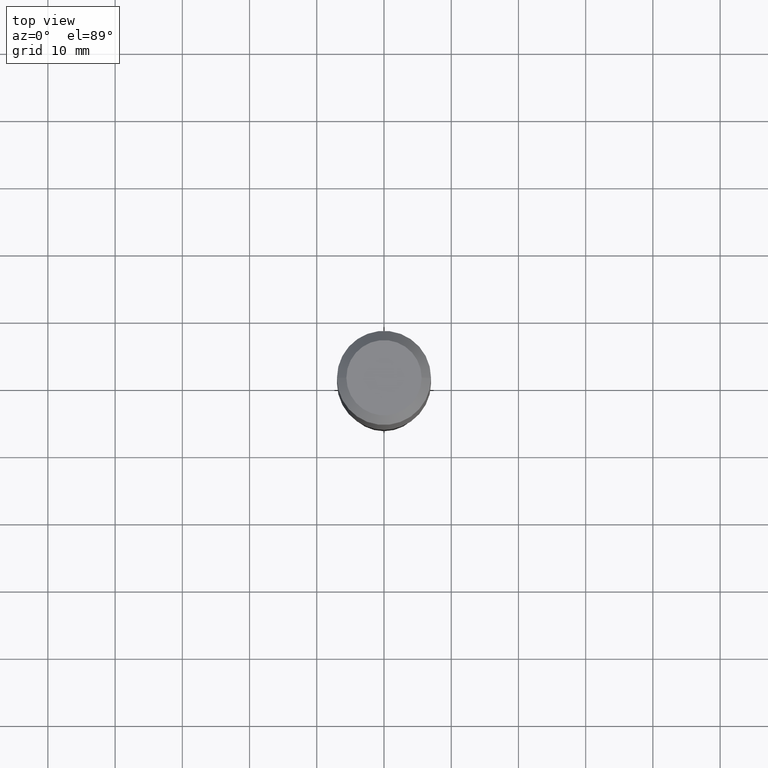
[diagram: clean part render]
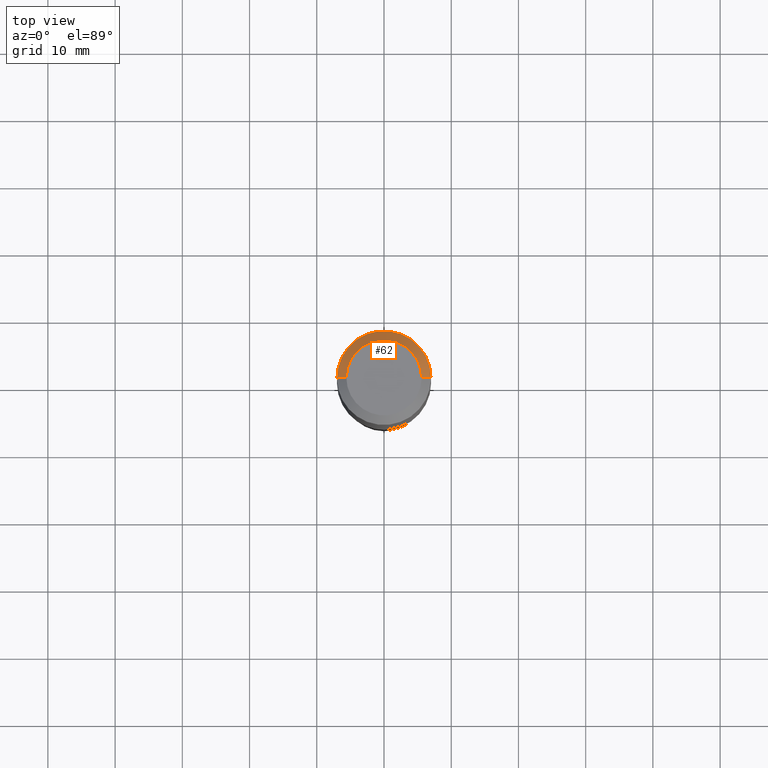
[diagram: same view with one face highlighted and labeled with its STEP entity id]
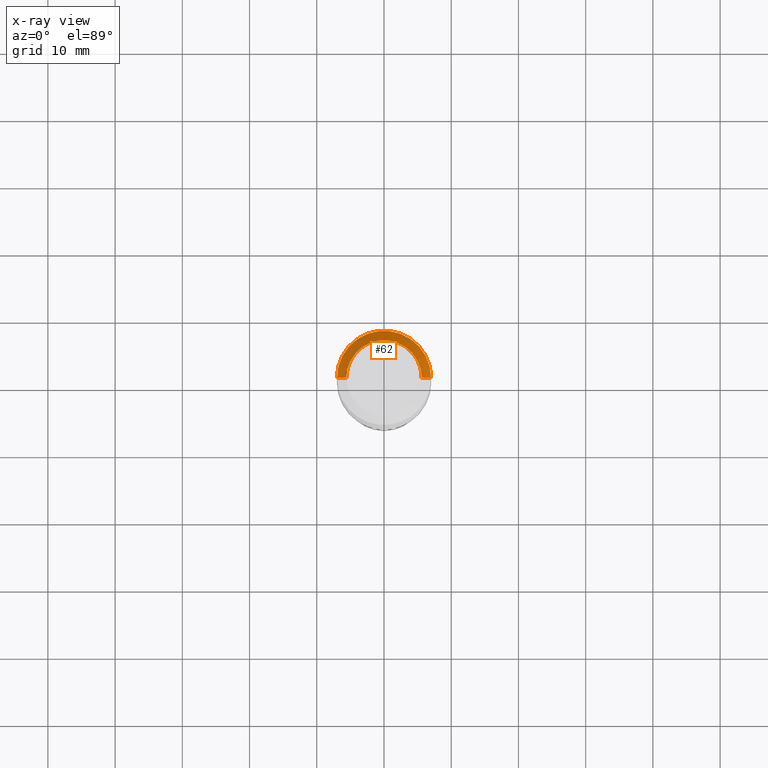
[diagram: x-ray of the same camera — body ghosted, the highlighted face saturated]
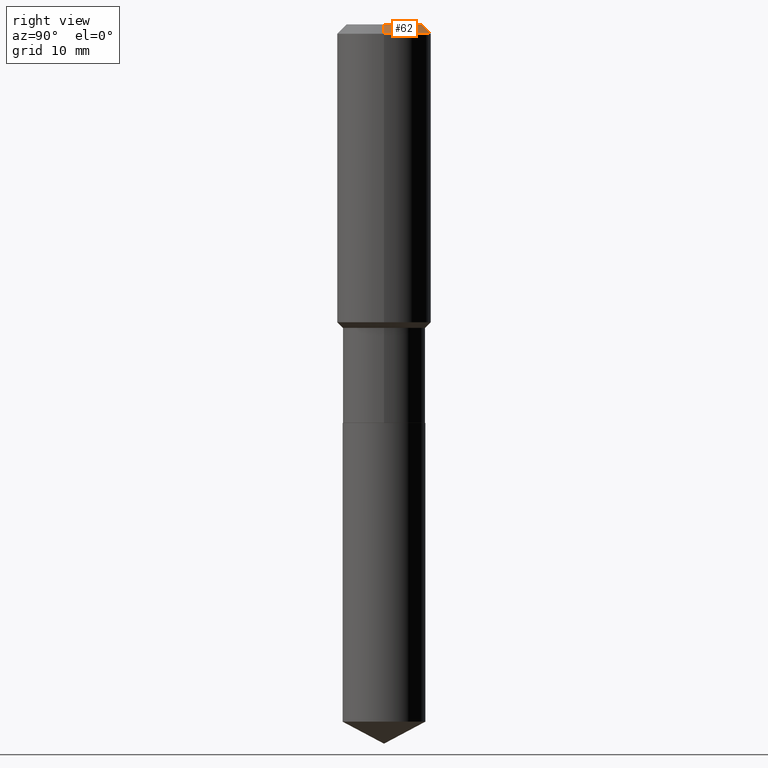
[diagram: same view with one face highlighted and labeled with its STEP entity id]
A machine part, top view. The second image highlights one B-rep face of the part: STEP entity #62.
The next image is the same camera in x-ray: the body ghosted, the highlighted face saturated — about 0% of this face is hidden behind the body in this view.
A second angle (right view) of the same face is appended — the face is thin or edge-on in the first view.
In plain terms, the highlighted conical surface has half-angle 45 deg.
Its self-contained STEP definition (entity closure, byte-faithful):
#15 = CARTESIAN_POINT ( 'NONE',  ( 1.347942405969256063E-30, -1.924504513970354330E-16, -0.05512000000000035621 ) ) ;
#44 = DIRECTION ( 'NONE',  ( -2.445468806185136597E-29, 3.491481338843145583E-15, 1.000000000000000000 ) ) ;
#56 = VERTEX_POINT ( 'NONE', #100 ) ;
#60 = DIRECTION ( 'NONE',  ( 2.445468806185136597E-29, -3.491481338843145583E-15, -1.000000000000000000 ) ) ;
#62 = ADVANCED_FACE ( 'NONE', ( #486 ), #426, .T. ) ;
#82 = DIRECTION ( 'NONE',  ( 0.7071067811865453523, -7.319954787623248157E-15, -0.7071067811865496822 ) ) ;
#83 = CARTESIAN_POINT ( 'NONE',  ( -9.439721640706190018E-47, 1.347742071746724849E-32, 3.860086710912454339E-18 ) ) ;
#90 = DIRECTION ( 'NONE',  ( -2.445468806185136597E-29, 3.491481338843145583E-15, 1.000000000000000000 ) ) ;
#93 = CARTESIAN_POINT ( 'NONE',  ( -0.2756000000000000116, -1.183064895615730633E-15, -0.05512000000000035621 ) ) ;
#100 = CARTESIAN_POINT ( 'NONE',  ( 0.2756000000000000116, -2.116954965367370658E-15, -0.05512000000000035621 ) ) ;
#106 = CARTESIAN_POINT ( 'NONE',  ( 1.347942405969256063E-30, -1.924504513970354330E-16, -0.05512000000000035621 ) ) ;
#117 = EDGE_CURVE ( 'NONE', #366, #56, #351, .T. ) ;
#129 = DIRECTION ( 'NONE',  ( 1.000000000000000000, -6.982962677686266711E-15, 4.876132675269083677E-29 ) ) ;
#141 = EDGE_CURVE ( 'NONE', #147, #222, #343, .T. ) ;
#147 = VERTEX_POINT ( 'NONE', #296 ) ;
#162 = AXIS2_PLACEMENT_3D ( 'NONE', #83, #44, #129 ) ;
#182 = EDGE_CURVE ( 'NONE', #56, #222, #232, .T. ) ;
#184 = DIRECTION ( 'NONE',  ( -1.000000000000000000, 6.982962677686269077E-15, 0.000000000000000000 ) ) ;
#199 = VECTOR ( 'NONE', #221, 39.37007874015748143 ) ;
#221 = DIRECTION ( 'NONE',  ( -0.7071067811865453523, 2.468850131082234184E-15, -0.7071067811865496822 ) ) ;
#222 = VERTEX_POINT ( 'NONE', #93 ) ;
#231 = VECTOR ( 'NONE', #82, 39.37007874015748143 ) ;
#232 = CIRCLE ( 'NONE', #380, 0.2756000000000000116 ) ;
#234 = DIRECTION ( 'NONE',  ( 1.000000000000000000, -6.982962677686265922E-15, 0.000000000000000000 ) ) ;
#259 = EDGE_CURVE ( 'NONE', #366, #147, #363, .T. ) ;
#268 = ORIENTED_EDGE ( 'NONE', *, *, #117, .T. ) ;
#278 = ORIENTED_EDGE ( 'NONE', *, *, #141, .F. ) ;
#280 = ORIENTED_EDGE ( 'NONE', *, *, #259, .F. ) ;
#296 = CARTESIAN_POINT ( 'NONE',  ( -0.2204800000000000093, 1.635828836874783961E-15, 3.860086710901350968E-18 ) ) ;
#316 = EDGE_LOOP ( 'NONE', ( #280, #268, #401, #278 ) ) ;
#329 = AXIS2_PLACEMENT_3D ( 'NONE', #106, #60, #184 ) ;
#343 = LINE ( 'NONE', #381, #199 ) ;
#351 = LINE ( 'NONE', #453, #231 ) ;
#363 = CIRCLE ( 'NONE', #162, 0.2204800000000000093 ) ;
#366 = VERTEX_POINT ( 'NONE', #383 ) ;
#380 = AXIS2_PLACEMENT_3D ( 'NONE', #15, #90, #234 ) ;
#381 = CARTESIAN_POINT ( 'NONE',  ( -0.2756000000000000116, 1.732054062573300039E-15, -0.05512000000000035621 ) ) ;
#383 = CARTESIAN_POINT ( 'NONE',  ( 0.2204800000000000093, -1.797903149065768707E-15, 3.860086710924123164E-18 ) ) ;
#401 = ORIENTED_EDGE ( 'NONE', *, *, #182, .T. ) ;
#426 = CONICAL_SURFACE ( 'NONE', #329, 0.2756000000000000116, 0.7853981633974452814 ) ;
#453 = CARTESIAN_POINT ( 'NONE',  ( 0.2756000000000000116, -2.083203699582869812E-15, -0.05512000000000035621 ) ) ;
#486 = FACE_OUTER_BOUND ( 'NONE', #316, .T. ) ;